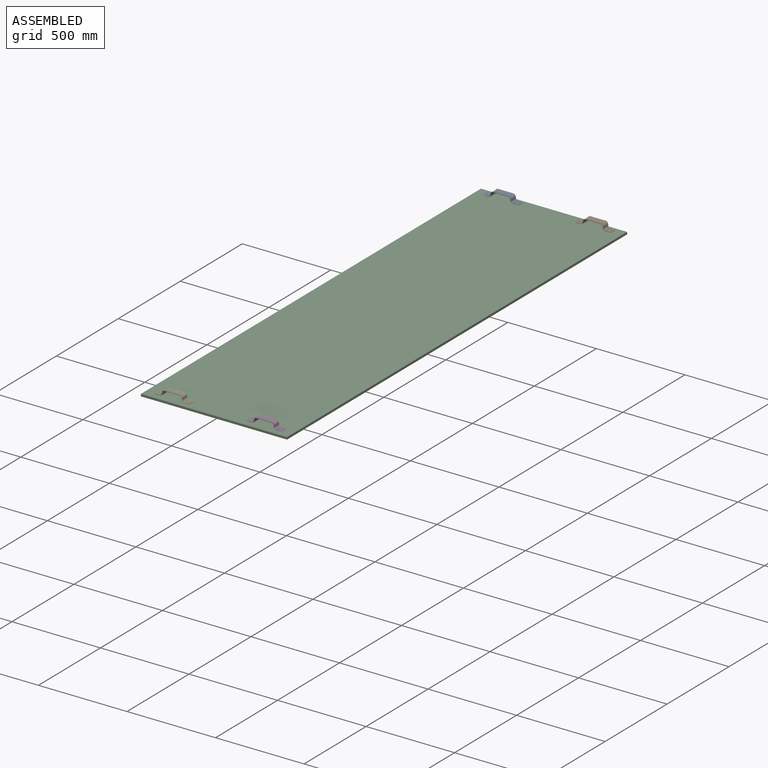
[diagram: assembled view]
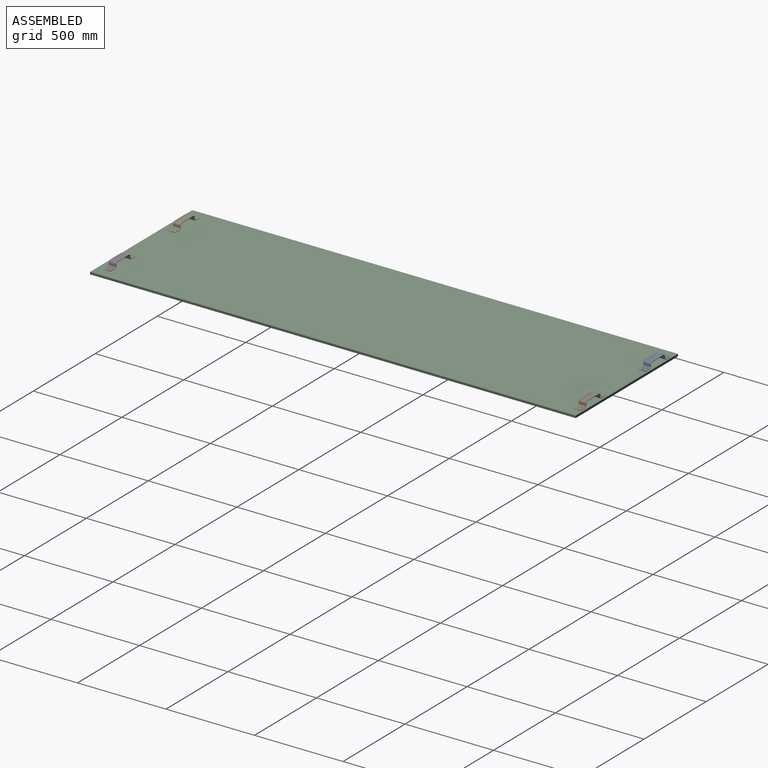
[diagram: assembled view, second angle]
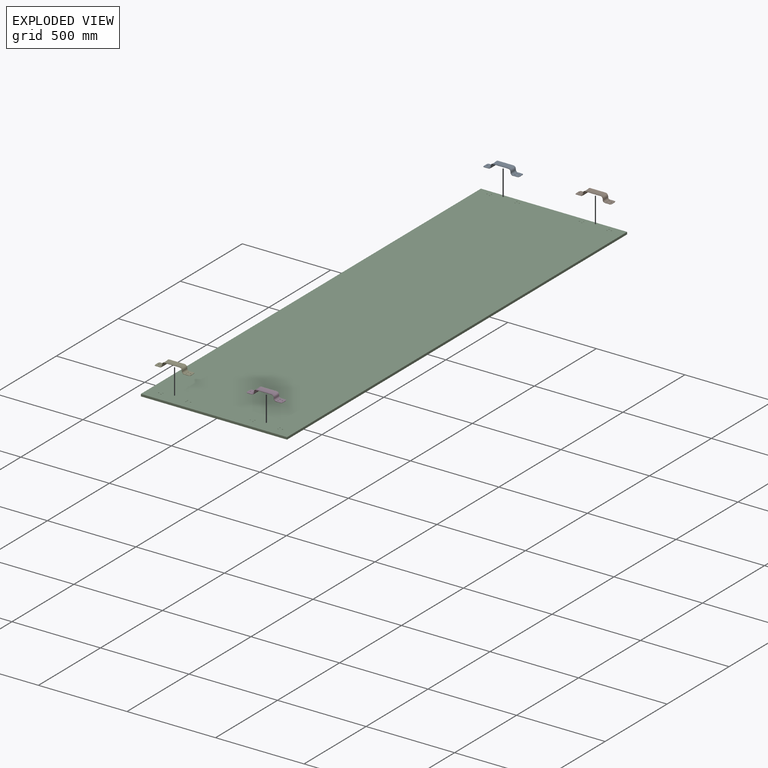
[diagram: exploded view]
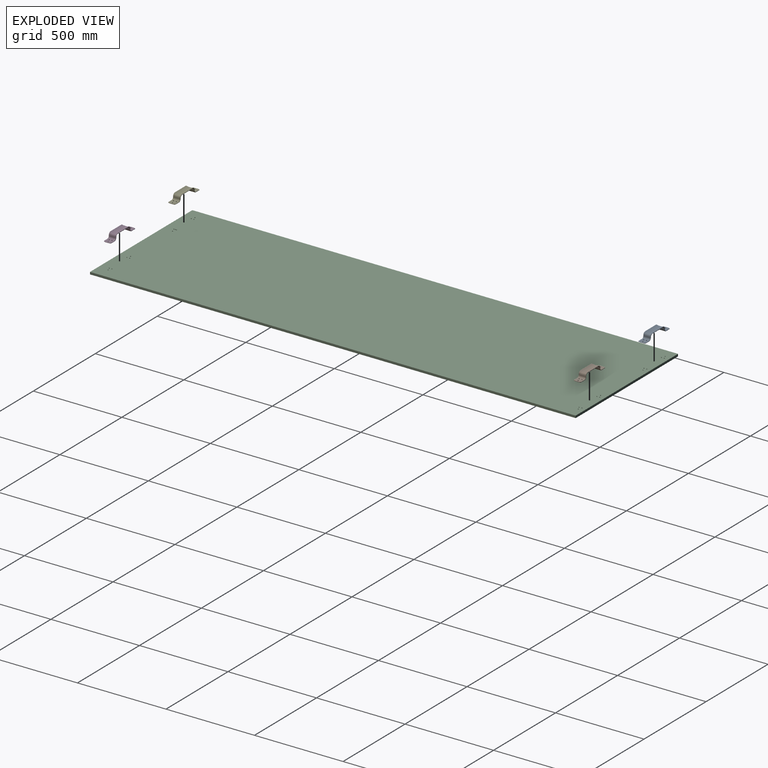
[diagram: exploded view, second angle]
ASSEMBLY  parts=5 mates=4
PART A: 80 faces, bbox 205.9x42.4x32.7 mm
  f0: torus R=90.22mm, axis (0,0,1), area 30.7mm2, adj f29,f31,f74,f75
  f1: torus R=90.22mm, axis (0,0,-1), area 30.7mm2, adj f21,f22,f51,f54
  f2: cylinder r=2.67mm len=5.33mm, axis (0,0,1), area 39.6mm2, adj f29,f30
  f3: cylinder r=2.67mm len=5.33mm, axis (0,0,1), area 39.6mm2, adj f29,f30
  f4: cylinder r=2.67mm len=5.33mm, axis (0,0,1), area 39.6mm2, adj f29,f30
  f5: cylinder r=2.67mm len=5.33mm, axis (0,0,1), area 39.6mm2, adj f20,f21
  f6: cylinder r=2.67mm len=5.33mm, axis (0,0,1), area 39.6mm2, adj f20,f21
  f7: cylinder r=2.67mm len=5.33mm, axis (0,0,1), area 39.6mm2, adj f20,f21
  f8: cylinder r=59.66mm len=84.29mm, axis (1,0,0), area 3477.3mm2, adj f10,f11,f15,f24
  f9: cylinder r=57.17mm len=84.29mm, axis (1,0,0), area 3405.5mm2, adj f14,f23,f52,f64
  f10: cylinder r=0.64mm len=84.29mm, axis (1,0,0), area 65.6mm2, adj f8,f12,f46,f70
  f11: cylinder r=0.64mm len=84.67mm, axis (1,0,0), area 66mm2, adj f8,f13,f36,f79
  f12: plane 188.08x30.22mm, normal (0,1,0), area 265.3mm2, adj f10,f34,f35,f43,f44,f45,f46,f47
  f13: plane 188.1x30.24mm, normal (0,-1,0), area 265mm2, adj f11,f32,f33,f36,f37,f38,f39,f56
  f14: bspline ~40.51x15.09mm, area 813.1mm2, adj f9,f16,f50,f62
  f15: bspline ~41.09x12.61mm, area 681.3mm2, adj f8,f17,f36,f46
  f16: plane 40.01x7.08mm, normal (-0.99,0,0.12), area 285.5mm2, adj f14,f18,f48,f60
  f17: plane 40.01x7.08mm, normal (0.99,0,-0.12), area 285.5mm2, adj f15,f19,f37,f45
  f18: cylinder r=10.34mm len=40.01mm, axis (0,-1,0), area 599.1mm2, adj f16,f21,f47,f58
  f19: cylinder r=12.7mm len=40.01mm, axis (0,-1,0), area 736mm2, adj f17,f20,f38,f44
  f20: plane 40.01x32.74mm, normal (0,0,-1), area 1203.9mm2, adj f5,f6,f7,f19,f39,f40,f41,f42
  f21: plane 40.01x32.74mm, normal (0,0,1), area 1203.9mm2, adj f1,f5,f6,f7,f18,f49,f51,f54
  f22: cylinder r=90.86mm len=30.72mm, axis (0,0,1), area 33.7mm2, adj f1,f33,f35,f41
  f23: bspline ~40.51x15.09mm, area 813.1mm2, adj f9,f25,f53,f66
  f24: bspline ~41.09x12.61mm, area 681.3mm2, adj f8,f26,f70,f79
  f25: plane 40.01x7.08mm, normal (0.99,0,0.12), area 285.5mm2, adj f23,f27,f55,f68
  f26: plane 40.01x7.08mm, normal (-0.99,0,-0.12), area 285.5mm2, adj f24,f28,f71,f78
  f27: cylinder r=10.34mm len=40.01mm, axis (0,-1,0), area 599.1mm2, adj f25,f30,f57,f69
  f28: cylinder r=12.7mm len=40.01mm, axis (0,-1,0), area 736mm2, adj f26,f29,f72,f77
  f29: plane 40.01x32.74mm, normal (0,0,-1), area 1203.9mm2, adj f0,f2,f3,f4,f28,f73,f74,f75
  f30: plane 40.01x32.74mm, normal (0,0,1), area 1203.9mm2, adj f2,f3,f4,f27,f59,f61,f63,f65
  f31: cylinder r=90.86mm len=30.72mm, axis (0,0,1), area 33.7mm2, adj f0,f32,f34,f63
  f32: cylinder r=6.35mm len=6.26mm, axis (0,0,1), area 9.7mm2, adj f13,f31,f65,f75
  f33: cylinder r=6.35mm len=6.26mm, axis (0,0,1), area 9.7mm2, adj f13,f22,f40,f54
  f34: cylinder r=6.35mm len=6.26mm, axis (0,0,1), area 9.7mm2, adj f12,f31,f61,f74
  f35: cylinder r=6.35mm len=6.26mm, axis (0,0,1), area 9.7mm2, adj f12,f22,f42,f51
  f36: bspline ~13.25x11.3mm, area 16.7mm2, adj f11,f13,f15,f37
  f37: cylinder r=0.64mm len=7.16mm, axis (0.12,0,0.99), area 7.1mm2, adj f13,f17,f36,f38
  f38: torus R=12.06mm, axis (0,-1,0), area 18mm2, adj f13,f19,f37,f39
  f39: cylinder r=0.64mm len=25.81mm, axis (1,0,0), area 25.7mm2, adj f13,f20,f38,f40
  f40: torus R=5.71mm, axis (0,0,1), area 8.6mm2, adj f20,f33,f39,f41
  f41: torus R=90.22mm, axis (0,0,1), area 30.7mm2, adj f20,f22,f40,f42
  f42: torus R=5.71mm, axis (0,0,1), area 8.6mm2, adj f20,f35,f41,f43
  f43: cylinder r=0.64mm len=25.81mm, axis (1,0,0), area 25.7mm2, adj f12,f20,f42,f44
  f44: torus R=12.06mm, axis (0,1,0), area 18mm2, adj f12,f19,f43,f45
  f45: cylinder r=0.64mm len=7.16mm, axis (0.12,0,0.99), area 7.1mm2, adj f12,f17,f44,f46
  f46: bspline ~13.25x11.3mm, area 16.7mm2, adj f10,f12,f15,f45
  f47: torus R=10.97mm, axis (0,1,0), area 15.3mm2, adj f12,f18,f48,f49
  f48: cylinder r=0.64mm len=7.16mm, axis (0.12,0,0.99), area 7.1mm2, adj f12,f16,f47,f50
  f49: cylinder r=0.64mm len=25.81mm, axis (1,0,0), area 25.7mm2, adj f12,f21,f47,f51
  f50: bspline ~14.95x13.02mm, area 23.4mm2, adj f12,f14,f48,f52
  f51: torus R=5.71mm, axis (0,0,-1), area 8.6mm2, adj f1,f21,f35,f49
  f52: cylinder r=0.64mm len=84.3mm, axis (1,0,0), area 103mm2, adj f9,f12,f50,f53
  f53: bspline ~15.09x13.03mm, area 23.4mm2, adj f12,f23,f52,f55
  f54: torus R=5.71mm, axis (0,0,-1), area 8.6mm2, adj f1,f21,f33,f56
  f55: cylinder r=0.64mm len=7.16mm, axis (-0.12,0,0.99), area 7.1mm2, adj f12,f25,f53,f57
  f56: cylinder r=0.64mm len=25.81mm, axis (1,0,0), area 25.7mm2, adj f13,f21,f54,f58
  f57: torus R=10.97mm, axis (0,1,0), area 15.3mm2, adj f12,f27,f55,f59
  f58: torus R=10.97mm, axis (0,-1,0), area 15.3mm2, adj f13,f18,f56,f60
  f59: cylinder r=0.64mm len=25.81mm, axis (-1,0,0), area 25.7mm2, adj f12,f30,f57,f61
  f60: cylinder r=0.64mm len=7.16mm, axis (0.12,0,0.99), area 7.1mm2, adj f13,f16,f58,f62
  f61: torus R=5.71mm, axis (0,0,-1), area 8.6mm2, adj f30,f34,f59,f63
  f62: bspline ~15.09x13.03mm, area 23.4mm2, adj f13,f14,f60,f64
  f63: torus R=90.22mm, axis (0,0,-1), area 30.7mm2, adj f30,f31,f61,f65
  f64: cylinder r=0.64mm len=84.3mm, axis (1,0,0), area 103mm2, adj f9,f13,f62,f66
  f65: torus R=5.71mm, axis (0,0,-1), area 8.6mm2, adj f30,f32,f63,f67
  f66: bspline ~14.95x13.02mm, area 23.4mm2, adj f13,f23,f64,f68
  f67: cylinder r=0.64mm len=25.81mm, axis (-1,0,0), area 25.7mm2, adj f13,f30,f65,f69
  f68: cylinder r=0.64mm len=7.16mm, axis (-0.12,0,0.99), area 7.1mm2, adj f13,f25,f66,f69
  f69: torus R=10.97mm, axis (0,-1,0), area 15.3mm2, adj f13,f27,f67,f68
  f70: bspline ~13.25x11.3mm, area 16.7mm2, adj f10,f12,f24,f71
  f71: cylinder r=0.64mm len=7.16mm, axis (-0.12,0,0.99), area 7.1mm2, adj f12,f26,f70,f72
  f72: torus R=12.06mm, axis (0,1,0), area 18mm2, adj f12,f28,f71,f73
  f73: cylinder r=0.64mm len=25.81mm, axis (-1,0,0), area 25.7mm2, adj f12,f29,f72,f74
  f74: torus R=5.71mm, axis (0,0,1), area 8.6mm2, adj f0,f29,f34,f73
  f75: torus R=5.71mm, axis (0,0,1), area 8.6mm2, adj f0,f29,f32,f76
  f76: cylinder r=0.64mm len=25.81mm, axis (-1,0,0), area 25.7mm2, adj f13,f29,f75,f77
  f77: torus R=12.06mm, axis (0,-1,0), area 18mm2, adj f13,f28,f76,f78
  f78: cylinder r=0.64mm len=7.16mm, axis (-0.12,0,0.99), area 7.1mm2, adj f13,f26,f77,f79
  f79: bspline ~13.25x11.3mm, area 16.5mm2, adj f11,f13,f24,f78
PART B: same geometry as A
PART C: 31 faces, bbox 825.5x2743.2x12.7 mm
  f0: plane 2743.2x12.7mm, normal (-1,0,0), area 34838.6mm2, adj f1,f3,f4,f5
  f1: plane 825.5x12.7mm, normal (0,-1,0), area 10483.8mm2, adj f0,f2,f4,f5
  f2: plane 2743.2x12.7mm, normal (1,0,0), area 34838.6mm2, adj f1,f3,f4,f5
  f3: plane 825.5x12.7mm, normal (0,1,0), area 10483.8mm2, adj f0,f2,f4,f5
  f4: plane 2743.2x825.5mm, normal (0,0,1), area 2263988.9mm2, adj f0,f1,f2,f3,f6,f7,f8,f9
  f5: plane 2743.2x825.5mm, normal (0,0,-1), area 2263988.9mm2, adj f0,f1,f2,f3,f6,f7,f8,f9
  f6: cylinder r=2.58mm len=12.7mm, axis (0,0,1), area 205.8mm2, adj f4,f5
  f7: cylinder r=2.58mm len=12.7mm, axis (0,0,1), area 205.8mm2, adj f4,f5
  f8: cylinder r=2.58mm len=12.7mm, axis (0,0,1), area 205.8mm2, adj f4,f5
  f9: cylinder r=2.58mm len=12.7mm, axis (0,0,1), area 205.8mm2, adj f4,f5
  f10: cylinder r=2.58mm len=12.7mm, axis (0,0,1), area 205.8mm2, adj f4,f5
  f11: cylinder r=2.58mm len=12.7mm, axis (0,0,1), area 205.8mm2, adj f4,f5
  f12: cylinder r=2.58mm len=12.7mm, axis (0,0,1), area 205.8mm2, adj f4,f5
  f13: cylinder r=2.58mm len=12.7mm, axis (0,0,1), area 205.8mm2, adj f4,f5
  f14: cylinder r=2.58mm len=12.7mm, axis (0,0,1), area 205.8mm2, adj f4,f5
  f15: cylinder r=2.58mm len=12.7mm, axis (0,0,1), area 205.8mm2, adj f4,f5
  f16: cylinder r=2.58mm len=12.7mm, axis (0,0,1), area 205.8mm2, adj f4,f5
  f17: cylinder r=2.58mm len=12.7mm, axis (0,0,1), area 205.8mm2, adj f4,f5
  f18: cylinder r=2.58mm len=12.7mm, axis (0,0,1), area 205.8mm2, adj f4,f5
  f19: cylinder r=2.58mm len=12.7mm, axis (0,0,1), area 205.8mm2, adj f4,f5
  f20: cylinder r=2.58mm len=12.7mm, axis (0,0,1), area 205.8mm2, adj f4,f5
  f21: cylinder r=2.58mm len=12.7mm, axis (0,0,1), area 205.8mm2, adj f4,f5
  f22: cylinder r=2.58mm len=12.7mm, axis (0,0,1), area 205.8mm2, adj f4,f5
  f23: cylinder r=2.58mm len=12.7mm, axis (0,0,1), area 205.8mm2, adj f4,f5
  f24: cylinder r=2.58mm len=12.7mm, axis (0,0,1), area 205.8mm2, adj f4,f5
  f25: cylinder r=2.58mm len=12.7mm, axis (0,0,1), area 205.8mm2, adj f4,f5
  f26: cylinder r=2.58mm len=12.7mm, axis (0,0,1), area 205.8mm2, adj f4,f5
  f27: cylinder r=2.58mm len=12.7mm, axis (0,0,1), area 205.8mm2, adj f4,f5
  f28: cylinder r=2.58mm len=12.7mm, axis (0,0,1), area 205.8mm2, adj f4,f5
  f29: cylinder r=2.58mm len=12.7mm, axis (0,0,1), area 205.8mm2, adj f4,f5
  f30: cylinder r=2.58mm len=12.7mm, axis (0,0,1), area 205.8mm2, adj f4,f5
PART D: same geometry as A
PART E: same geometry as A
PLACE A t=(113.71,86.09,390.73)mm
PLACE B t=(635.01,86.09,390.73)mm
PLACE C t=(1212.7,-2590.88,378.03)mm
PLACE D t=(635.01,-2568.21,390.73)mm
PLACE E t=(116.29,-2568.21,390.73)mm
MATE fastened B.f7 <-> C.f7  axis (0,0,-1) through (544.52,86.09,390.73)mm
MATE fastened D.f7 <-> C.f21  axis (0,0,-1) through (544.52,-2568.21,390.73)mm
MATE fastened A.f7 <-> C.f9  axis (0,0,-1) through (23.23,86.09,390.73)mm
MATE fastened E.f7 <-> C.f27  axis (0,0,-1) through (25.81,-2568.21,390.73)mm
